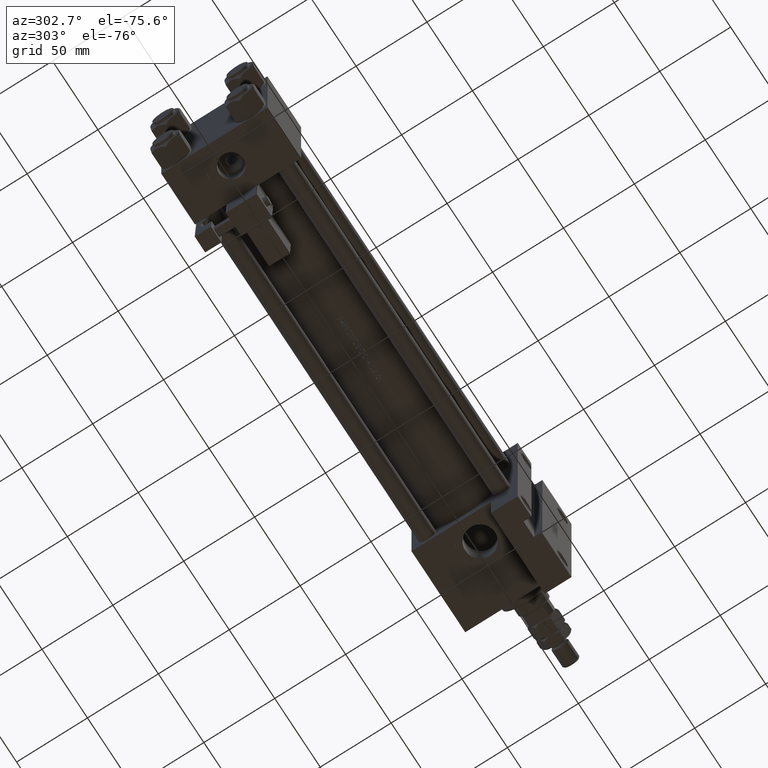
[diagram: clean part render]
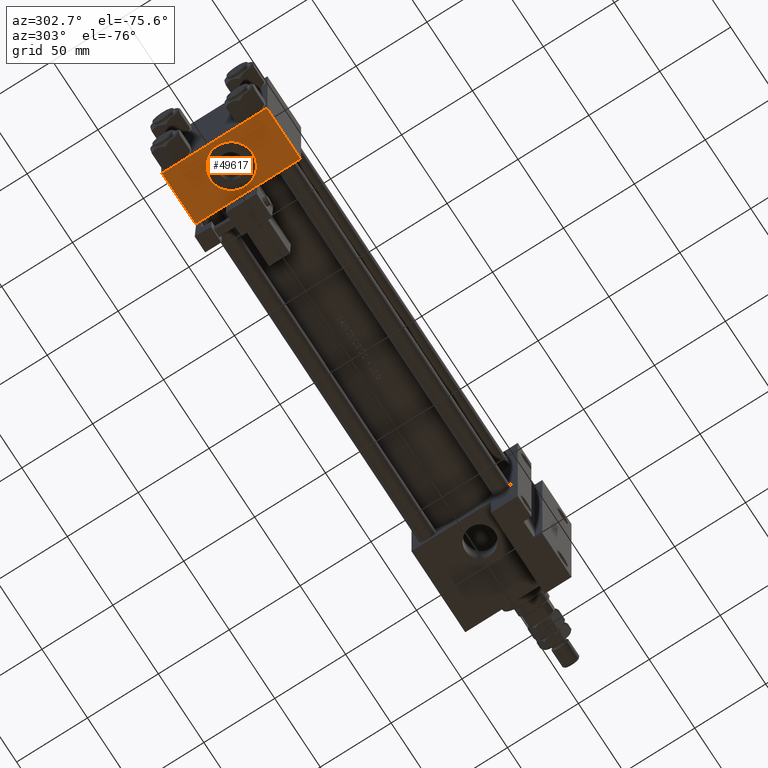
[diagram: same view with one face highlighted and labeled with its STEP entity id]
A machine part, auxiliary view. The second image highlights one B-rep face of the part: STEP entity #49617.
In plain terms, the highlighted planar face has unit normal (0, 0, -1).
Its self-contained STEP definition (entity closure, byte-faithful):
#1558 = CARTESIAN_POINT ( 'NONE',  ( 0.000000000000000000, 37.49999999999999289, 37.50000000000000000 ) ) ;
#1934 = ORIENTED_EDGE ( 'NONE', *, *, #23621, .T. ) ;
#5689 = DIRECTION ( 'NONE',  ( 0.000000000000000000, -0.000000000000000000, 1.000000000000000000 ) ) ;
#6078 = VECTOR ( 'NONE', #16163, 1000.000000000000000 ) ;
#8741 = DIRECTION ( 'NONE',  ( -1.000000000000000000, 0.000000000000000000, 0.000000000000000000 ) ) ;
#8990 = VECTOR ( 'NONE', #21719, 1000.000000000000000 ) ;
#9075 = FACE_OUTER_BOUND ( 'NONE', #32592, .T. ) ;
#9918 = DIRECTION ( 'NONE',  ( 0.000000000000000000, 1.000000000000000000, 0.000000000000000000 ) ) ;
#10455 = VERTEX_POINT ( 'NONE', #26599 ) ;
#10663 = CARTESIAN_POINT ( 'NONE',  ( 18.50000000000000355, 37.49999999999999289, -15.00000000000000178 ) ) ;
#12142 = EDGE_LOOP ( 'NONE', ( #21214, #39054 ) ) ;
#12523 = CARTESIAN_POINT ( 'NONE',  ( 37.00000000000000000, 37.49999999999999289, 37.50000000000000000 ) ) ;
#12732 = EDGE_CURVE ( 'NONE', #42952, #10455, #25711, .T. ) ;
#13206 = VERTEX_POINT ( 'NONE', #50297 ) ;
#14741 = VECTOR ( 'NONE', #8741, 1000.000000000000000 ) ;
#15158 = AXIS2_PLACEMENT_3D ( 'NONE', #30812, #46671, #34968 ) ;
#16163 = DIRECTION ( 'NONE',  ( 0.000000000000000000, 0.000000000000000000, -1.000000000000000000 ) ) ;
#17911 = DIRECTION ( 'NONE',  ( 0.000000000000000000, 0.000000000000000000, -1.000000000000000000 ) ) ;
#20133 = CIRCLE ( 'NONE', #15158, 15.00000000000000178 ) ;
#21214 = ORIENTED_EDGE ( 'NONE', *, *, #37075, .F. ) ;
#21631 = CIRCLE ( 'NONE', #41536, 15.00000000000000178 ) ;
#21719 = DIRECTION ( 'NONE',  ( 1.000000000000000000, 0.000000000000000000, 0.000000000000000000 ) ) ;
#22116 = CARTESIAN_POINT ( 'NONE',  ( 18.50000000000000000, 37.49999999999999289, 0.000000000000000000 ) ) ;
#23621 = EDGE_CURVE ( 'NONE', #39426, #10455, #36042, .T. ) ;
#25168 = DIRECTION ( 'NONE',  ( -0.000000000000000000, 1.000000000000000000, 0.000000000000000000 ) ) ;
#25379 = VERTEX_POINT ( 'NONE', #10663 ) ;
#25711 = LINE ( 'NONE', #1558, #43837 ) ;
#25892 = ORIENTED_EDGE ( 'NONE', *, *, #12732, .F. ) ;
#26599 = CARTESIAN_POINT ( 'NONE',  ( 0.000000000000000000, 37.49999999999999289, -36.99999999999998579 ) ) ;
#29514 = EDGE_CURVE ( 'NONE', #25379, #47438, #21631, .T. ) ;
#30639 = CARTESIAN_POINT ( 'NONE',  ( 18.50000000000000000, 37.49999999999999289, 15.00000000000000178 ) ) ;
#30812 = CARTESIAN_POINT ( 'NONE',  ( 18.50000000000000000, 37.49999999999999289, 0.000000000000000000 ) ) ;
#30945 = ORIENTED_EDGE ( 'NONE', *, *, #42992, .T. ) ;
#32592 = EDGE_LOOP ( 'NONE', ( #49067, #1934, #25892, #30945 ) ) ;
#32781 = LINE ( 'NONE', #12523, #6078 ) ;
#32988 = CARTESIAN_POINT ( 'NONE',  ( 37.00000000000000000, 37.49999999999999289, -36.99999999999998579 ) ) ;
#34968 = DIRECTION ( 'NONE',  ( 0.000000000000000000, 0.000000000000000000, 1.000000000000000000 ) ) ;
#36042 = LINE ( 'NONE', #36557, #14741 ) ;
#36557 = CARTESIAN_POINT ( 'NONE',  ( 37.00000000000000000, 37.49999999999999289, -36.99999999999998579 ) ) ;
#36869 = FACE_BOUND ( 'NONE', #12142, .T. ) ;
#37075 = EDGE_CURVE ( 'NONE', #47438, #25379, #20133, .T. ) ;
#37392 = PLANE ( 'NONE',  #39835 ) ;
#37473 = DIRECTION ( 'NONE',  ( 0.000000000000000000, 0.000000000000000000, 1.000000000000000000 ) ) ;
#38069 = EDGE_CURVE ( 'NONE', #13206, #39426, #32781, .T. ) ;
#38889 = CARTESIAN_POINT ( 'NONE',  ( 0.000000000000000000, 37.49999999999999289, 37.00000000000000000 ) ) ;
#39054 = ORIENTED_EDGE ( 'NONE', *, *, #29514, .F. ) ;
#39426 = VERTEX_POINT ( 'NONE', #32988 ) ;
#39835 = AXIS2_PLACEMENT_3D ( 'NONE', #40757, #25168, #5689 ) ;
#40757 = CARTESIAN_POINT ( 'NONE',  ( 37.00000000000000000, 37.49999999999999289, 37.50000000000000000 ) ) ;
#41536 = AXIS2_PLACEMENT_3D ( 'NONE', #22116, #9918, #37473 ) ;
#42952 = VERTEX_POINT ( 'NONE', #38889 ) ;
#42992 = EDGE_CURVE ( 'NONE', #42952, #13206, #45616, .T. ) ;
#43837 = VECTOR ( 'NONE', #17911, 1000.000000000000000 ) ;
#45616 = LINE ( 'NONE', #45864, #8990 ) ;
#45864 = CARTESIAN_POINT ( 'NONE',  ( 37.00000000000000000, 37.49999999999999289, 37.00000000000000000 ) ) ;
#46671 = DIRECTION ( 'NONE',  ( 0.000000000000000000, 1.000000000000000000, 0.000000000000000000 ) ) ;
#47438 = VERTEX_POINT ( 'NONE', #30639 ) ;
#49067 = ORIENTED_EDGE ( 'NONE', *, *, #38069, .T. ) ;
#49617 = ADVANCED_FACE ( 'NONE', ( #36869, #9075 ), #37392, .T. ) ;
#50297 = CARTESIAN_POINT ( 'NONE',  ( 37.00000000000000000, 37.49999999999999289, 37.00000000000000000 ) ) ;